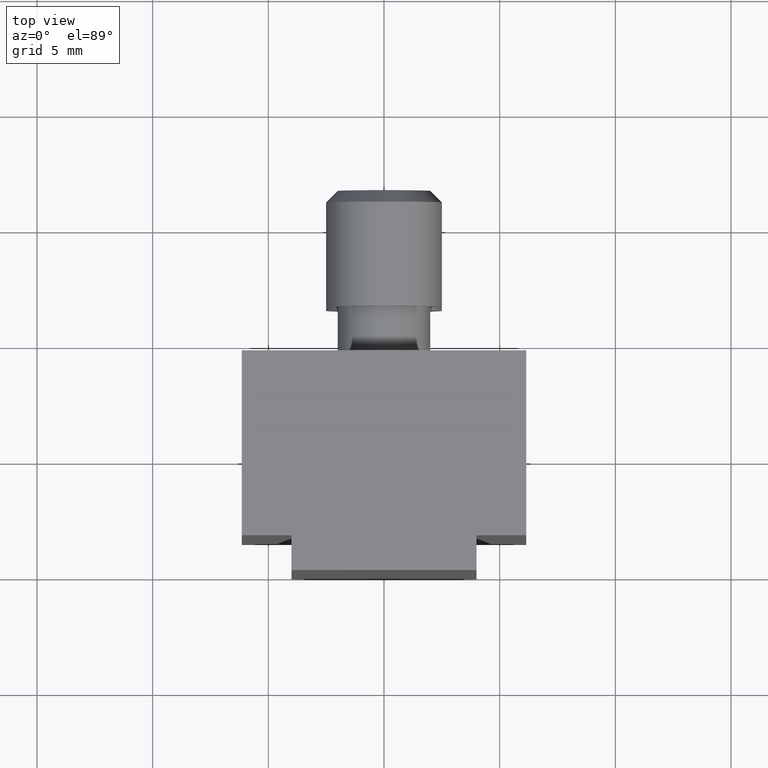
[diagram: clean part render]
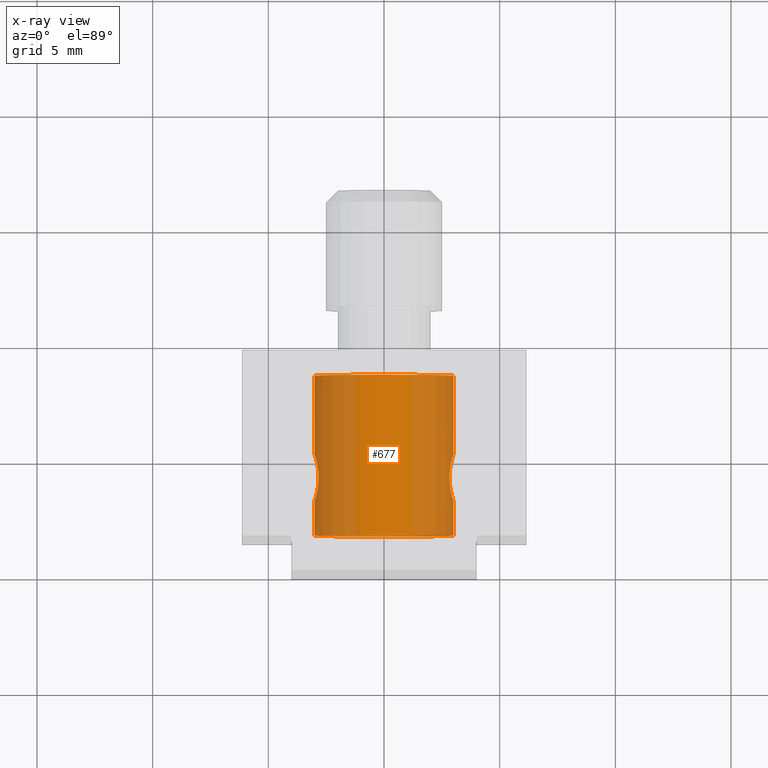
[diagram: x-ray — body ghosted, one internal face saturated and labeled with its STEP entity id]
A machine part, top view, then the same camera in x-ray: the body is ghosted and one INTERNAL B-rep face — a face not visible from any outside direction — is saturated and labeled: STEP entity #677.
In plain terms, the highlighted cylindrical surface (bore or boss wall) has radius 3 mm, axis along (-0, 1, 0).
Its self-contained STEP definition (entity closure, byte-faithful):
#37=FACE_BOUND('',#126,.T.);
#81=FACE_OUTER_BOUND('',#125,.T.);
#125=EDGE_LOOP('',(#501,#502,#503,#504,#505,#506,#507,#508,#509,#510,#511));
#126=EDGE_LOOP('',(#512,#513));
#167=B_SPLINE_CURVE_WITH_KNOTS('',3,(#1085,#1086,#1087,#1088,#1089,#1090,
#1091,#1092,#1093,#1094,#1095,#1096,#1097,#1098,#1099,#1100,#1101,#1102),
 .UNSPECIFIED.,.F.,.F.,(4,2,2,2,2,2,2,2,4),(0.151940029365148,0.189916225925354,
0.227892422485559,0.265886240607928,0.303880058730296,0.341873876852665,
0.379867694975034,0.417843891535239,0.455820088095444),.UNSPECIFIED.);
#168=B_SPLINE_CURVE_WITH_KNOTS('',3,(#1104,#1105,#1106,#1107,#1108,#1109,
#1110,#1111,#1112,#1113),.UNSPECIFIED.,.F.,.F.,(4,2,2,2,4),(0.,0.0379938181223687,
0.0759876362447373,0.113963832804943,0.151940029365148),.UNSPECIFIED.);
#169=B_SPLINE_CURVE_WITH_KNOTS('',3,(#1114,#1115,#1116,#1117,#1118,#1119,
#1120,#1121,#1122,#1123),.UNSPECIFIED.,.F.,.F.,(4,2,2,2,4),(0.455820088095444,
0.49379628465565,0.531772481215855,0.569766299338224,0.607760117460593),
 .UNSPECIFIED.);
#170=B_SPLINE_CURVE_WITH_KNOTS('',3,(#1128,#1129,#1130,#1131,#1132,#1133,
#1134,#1135,#1136,#1137),.UNSPECIFIED.,.F.,.F.,(4,2,2,2,4),(0.,0.0379938181223687,
0.0759876362447373,0.113963832804943,0.151940029365148),.UNSPECIFIED.);
#171=B_SPLINE_CURVE_WITH_KNOTS('',3,(#1138,#1139,#1140,#1141,#1142,#1143,
#1144,#1145,#1146,#1147,#1148,#1149,#1150,#1151,#1152,#1153,#1154,#1155,
#1156,#1157,#1158,#1159,#1160,#1161,#1162,#1163),.UNSPECIFIED.,.F.,.F.,
(4,2,2,2,2,2,2,2,2,2,2,2,4),(0.151940029365148,0.189916225925354,0.227892422485559,
0.265886240607928,0.303880058730296,0.341873876852665,0.379867694975034,
0.417843891535239,0.455820088095444,0.49379628465565,0.531772481215855,
0.569766299338224,0.607760117460593),.UNSPECIFIED.);
#186=LINE('',#1273,#231);
#187=LINE('',#1275,#232);
#231=VECTOR('',#915,3.);
#232=VECTOR('',#916,3.);
#279=CIRCLE('',#800,3.);
#280=CIRCLE('',#801,3.);
#281=CIRCLE('',#803,3.);
#282=CIRCLE('',#804,3.);
#307=VERTEX_POINT('',#1082);
#308=VERTEX_POINT('',#1084);
#309=VERTEX_POINT('',#1103);
#310=VERTEX_POINT('',#1126);
#311=VERTEX_POINT('',#1127);
#324=VERTEX_POINT('',#1268);
#325=VERTEX_POINT('',#1269);
#326=VERTEX_POINT('',#1274);
#327=VERTEX_POINT('',#1276);
#373=EDGE_CURVE('',#308,#307,#167,.T.);
#374=EDGE_CURVE('',#309,#308,#168,.T.);
#375=EDGE_CURVE('',#307,#309,#169,.T.);
#376=EDGE_CURVE('',#310,#311,#170,.T.);
#377=EDGE_CURVE('',#311,#310,#171,.T.);
#394=EDGE_CURVE('',#324,#325,#279,.T.);
#395=EDGE_CURVE('',#325,#324,#280,.T.);
#396=EDGE_CURVE('',#325,#307,#186,.T.);
#397=EDGE_CURVE('',#308,#326,#187,.T.);
#398=EDGE_CURVE('',#327,#326,#281,.T.);
#399=EDGE_CURVE('',#326,#327,#282,.T.);
#501=ORIENTED_EDGE('',*,*,#394,.T.);
#502=ORIENTED_EDGE('',*,*,#396,.T.);
#503=ORIENTED_EDGE('',*,*,#375,.T.);
#504=ORIENTED_EDGE('',*,*,#374,.T.);
#505=ORIENTED_EDGE('',*,*,#397,.T.);
#506=ORIENTED_EDGE('',*,*,#398,.F.);
#507=ORIENTED_EDGE('',*,*,#399,.F.);
#508=ORIENTED_EDGE('',*,*,#397,.F.);
#509=ORIENTED_EDGE('',*,*,#373,.T.);
#510=ORIENTED_EDGE('',*,*,#396,.F.);
#511=ORIENTED_EDGE('',*,*,#395,.T.);
#512=ORIENTED_EDGE('',*,*,#376,.T.);
#513=ORIENTED_EDGE('',*,*,#377,.T.);
#658=CYLINDRICAL_SURFACE('',#802,3.);
#677=ADVANCED_FACE('',(#81,#37),#658,.F.);
#800=AXIS2_PLACEMENT_3D('',#1270,#909,#910);
#801=AXIS2_PLACEMENT_3D('',#1271,#911,#912);
#802=AXIS2_PLACEMENT_3D('',#1272,#913,#914);
#803=AXIS2_PLACEMENT_3D('',#1277,#917,#918);
#804=AXIS2_PLACEMENT_3D('',#1278,#919,#920);
#909=DIRECTION('center_axis',(-1.4078915167348E-16,1.,0.));
#910=DIRECTION('ref_axis',(-1.,0.,0.));
#911=DIRECTION('center_axis',(-1.4078915167348E-16,1.,0.));
#912=DIRECTION('ref_axis',(-1.,0.,0.));
#913=DIRECTION('center_axis',(-1.4078915167348E-16,1.,0.));
#914=DIRECTION('ref_axis',(-1.,0.,0.));
#915=DIRECTION('',(1.4078915167348E-16,-1.,0.));
#916=DIRECTION('',(1.4078915167348E-16,-1.,0.));
#917=DIRECTION('center_axis',(-1.4078915167348E-16,1.,0.));
#918=DIRECTION('ref_axis',(-1.,0.,0.));
#919=DIRECTION('center_axis',(-1.4078915167348E-16,1.,0.));
#920=DIRECTION('ref_axis',(-1.,0.,0.));
#1082=CARTESIAN_POINT('',(3.,5.1,5.5));
#1084=CARTESIAN_POINT('',(3.,3.1,5.5));
#1085=CARTESIAN_POINT('Ctrl Pts',(3.,3.1,5.5));
#1086=CARTESIAN_POINT('Ctrl Pts',(3.,3.1,5.37341267813265));
#1087=CARTESIAN_POINT('Ctrl Pts',(2.99120237943456,3.12549557919695,5.23903386277914));
#1088=CARTESIAN_POINT('Ctrl Pts',(2.9594369553034,3.22785651388342,4.9929221880426));
#1089=CARTESIAN_POINT('Ctrl Pts',(2.93687311015683,3.30467045677192,4.88111598085499));
#1090=CARTESIAN_POINT('Ctrl Pts',(2.89406885606298,3.48115691762661,4.7046295200003));
#1091=CARTESIAN_POINT('Ctrl Pts',(2.87093041276233,3.5929468200423,4.62784709237365));
#1092=CARTESIAN_POINT('Ctrl Pts',(2.83782678287125,3.83899802653648,4.52550966073119));
#1093=CARTESIAN_POINT('Ctrl Pts',(2.82842712474619,3.97335393959211,4.5));
#1094=CARTESIAN_POINT('Ctrl Pts',(2.82842712474619,4.2266460604079,4.5));
#1095=CARTESIAN_POINT('Ctrl Pts',(2.83782678287126,4.36100197346352,4.52550966073119));
#1096=CARTESIAN_POINT('Ctrl Pts',(2.87093041276233,4.6070531799577,4.62784709237365));
#1097=CARTESIAN_POINT('Ctrl Pts',(2.89406885606298,4.71884308237339,4.7046295200003));
#1098=CARTESIAN_POINT('Ctrl Pts',(2.93687311015683,4.89532954322809,4.88111598085499));
#1099=CARTESIAN_POINT('Ctrl Pts',(2.9594369553034,4.97214348611659,4.9929221880426));
#1100=CARTESIAN_POINT('Ctrl Pts',(2.99120237943456,5.07450442080305,5.23903386277914));
#1101=CARTESIAN_POINT('Ctrl Pts',(3.,5.1,5.37341267813265));
#1102=CARTESIAN_POINT('Ctrl Pts',(3.,5.1,5.5));
#1103=CARTESIAN_POINT('',(2.82842712474619,4.1,6.5));
#1104=CARTESIAN_POINT('Ctrl Pts',(2.82842712474619,4.1,6.5));
#1105=CARTESIAN_POINT('Ctrl Pts',(2.82842712474619,3.97335393959211,6.5));
#1106=CARTESIAN_POINT('Ctrl Pts',(2.83782678287125,3.83899802653648,6.47449033926881));
#1107=CARTESIAN_POINT('Ctrl Pts',(2.87093041276233,3.5929468200423,6.37215290762635));
#1108=CARTESIAN_POINT('Ctrl Pts',(2.89406885606298,3.48115691762661,6.2953704799997));
#1109=CARTESIAN_POINT('Ctrl Pts',(2.93687311015683,3.30467045677192,6.11888401914501));
#1110=CARTESIAN_POINT('Ctrl Pts',(2.9594369553034,3.22785651388342,6.00707781195741));
#1111=CARTESIAN_POINT('Ctrl Pts',(2.99120237943456,3.12549557919695,5.76096613722086));
#1112=CARTESIAN_POINT('Ctrl Pts',(3.,3.1,5.62658732186735));
#1113=CARTESIAN_POINT('Ctrl Pts',(3.,3.1,5.5));
#1114=CARTESIAN_POINT('Ctrl Pts',(3.,5.1,5.5));
#1115=CARTESIAN_POINT('Ctrl Pts',(3.,5.1,5.62658732186735));
#1116=CARTESIAN_POINT('Ctrl Pts',(2.99120237943456,5.07450442080305,5.76096613722086));
#1117=CARTESIAN_POINT('Ctrl Pts',(2.9594369553034,4.97214348611659,6.00707781195741));
#1118=CARTESIAN_POINT('Ctrl Pts',(2.93687311015683,4.89532954322809,6.11888401914501));
#1119=CARTESIAN_POINT('Ctrl Pts',(2.89406885606298,4.71884308237339,6.2953704799997));
#1120=CARTESIAN_POINT('Ctrl Pts',(2.87093041276233,4.6070531799577,6.37215290762635));
#1121=CARTESIAN_POINT('Ctrl Pts',(2.83782678287126,4.36100197346352,6.47449033926881));
#1122=CARTESIAN_POINT('Ctrl Pts',(2.82842712474619,4.2266460604079,6.5));
#1123=CARTESIAN_POINT('Ctrl Pts',(2.82842712474619,4.1,6.5));
#1126=CARTESIAN_POINT('',(-2.82842712474619,4.1,6.5));
#1127=CARTESIAN_POINT('',(-3.,5.1,5.5));
#1128=CARTESIAN_POINT('Ctrl Pts',(-2.82842712474619,4.1,6.5));
#1129=CARTESIAN_POINT('Ctrl Pts',(-2.82842712474619,4.2266460604079,6.5));
#1130=CARTESIAN_POINT('Ctrl Pts',(-2.83782678287125,4.36100197346352,6.47449033926881));
#1131=CARTESIAN_POINT('Ctrl Pts',(-2.87093041276233,4.6070531799577,6.37215290762635));
#1132=CARTESIAN_POINT('Ctrl Pts',(-2.89406885606298,4.71884308237339,6.2953704799997));
#1133=CARTESIAN_POINT('Ctrl Pts',(-2.93687311015683,4.89532954322809,6.11888401914501));
#1134=CARTESIAN_POINT('Ctrl Pts',(-2.9594369553034,4.97214348611659,6.00707781195741));
#1135=CARTESIAN_POINT('Ctrl Pts',(-2.99120237943456,5.07450442080305,5.76096613722086));
#1136=CARTESIAN_POINT('Ctrl Pts',(-3.,5.1,5.62658732186735));
#1137=CARTESIAN_POINT('Ctrl Pts',(-3.,5.1,5.5));
#1138=CARTESIAN_POINT('Ctrl Pts',(-3.,5.1,5.5));
#1139=CARTESIAN_POINT('Ctrl Pts',(-3.,5.1,5.37341267813265));
#1140=CARTESIAN_POINT('Ctrl Pts',(-2.99120237943456,5.07450442080305,5.23903386277914));
#1141=CARTESIAN_POINT('Ctrl Pts',(-2.9594369553034,4.97214348611659,4.9929221880426));
#1142=CARTESIAN_POINT('Ctrl Pts',(-2.93687311015683,4.89532954322809,4.88111598085499));
#1143=CARTESIAN_POINT('Ctrl Pts',(-2.89406885606298,4.71884308237339,4.7046295200003));
#1144=CARTESIAN_POINT('Ctrl Pts',(-2.87093041276233,4.6070531799577,4.62784709237365));
#1145=CARTESIAN_POINT('Ctrl Pts',(-2.83782678287125,4.36100197346352,4.52550966073119));
#1146=CARTESIAN_POINT('Ctrl Pts',(-2.82842712474619,4.2266460604079,4.5));
#1147=CARTESIAN_POINT('Ctrl Pts',(-2.82842712474619,3.97335393959211,4.5));
#1148=CARTESIAN_POINT('Ctrl Pts',(-2.83782678287125,3.83899802653648,4.52550966073119));
#1149=CARTESIAN_POINT('Ctrl Pts',(-2.87093041276233,3.5929468200423,4.62784709237365));
#1150=CARTESIAN_POINT('Ctrl Pts',(-2.89406885606298,3.48115691762661,4.7046295200003));
#1151=CARTESIAN_POINT('Ctrl Pts',(-2.93687311015683,3.30467045677192,4.88111598085499));
#1152=CARTESIAN_POINT('Ctrl Pts',(-2.9594369553034,3.22785651388342,4.9929221880426));
#1153=CARTESIAN_POINT('Ctrl Pts',(-2.99120237943456,3.12549557919695,5.23903386277914));
#1154=CARTESIAN_POINT('Ctrl Pts',(-3.,3.1,5.37341267813265));
#1155=CARTESIAN_POINT('Ctrl Pts',(-3.,3.1,5.62658732186735));
#1156=CARTESIAN_POINT('Ctrl Pts',(-2.99120237943456,3.12549557919695,5.76096613722086));
#1157=CARTESIAN_POINT('Ctrl Pts',(-2.9594369553034,3.22785651388342,6.00707781195741));
#1158=CARTESIAN_POINT('Ctrl Pts',(-2.93687311015683,3.30467045677192,6.11888401914501));
#1159=CARTESIAN_POINT('Ctrl Pts',(-2.89406885606298,3.48115691762661,6.2953704799997));
#1160=CARTESIAN_POINT('Ctrl Pts',(-2.87093041276233,3.5929468200423,6.37215290762635));
#1161=CARTESIAN_POINT('Ctrl Pts',(-2.83782678287125,3.83899802653648,6.47449033926881));
#1162=CARTESIAN_POINT('Ctrl Pts',(-2.82842712474619,3.97335393959211,6.5));
#1163=CARTESIAN_POINT('Ctrl Pts',(-2.82842712474619,4.1,6.5));
#1268=CARTESIAN_POINT('',(-3.,8.5,5.5));
#1269=CARTESIAN_POINT('',(3.,8.5,5.5));
#1270=CARTESIAN_POINT('Origin',(5.55111512312578E-16,8.5,5.5));
#1271=CARTESIAN_POINT('Origin',(5.55111512312578E-16,8.5,5.5));
#1272=CARTESIAN_POINT('Origin',(1.04083408558608E-15,5.05,5.5));
#1273=CARTESIAN_POINT('',(3.,5.05,5.5));
#1274=CARTESIAN_POINT('',(3.,1.6,5.5));
#1275=CARTESIAN_POINT('',(3.,5.05,5.5));
#1276=CARTESIAN_POINT('',(-3.,1.6,5.5));
#1277=CARTESIAN_POINT('Origin',(1.52655665885959E-15,1.6,5.5));
#1278=CARTESIAN_POINT('Origin',(1.52655665885959E-15,1.6,5.5));